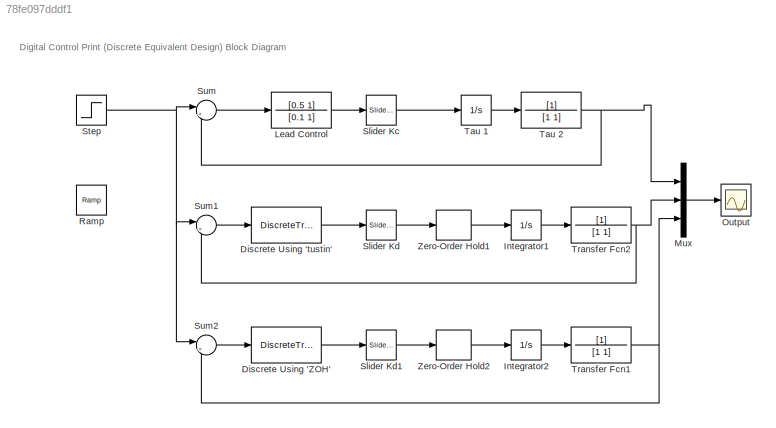
MODEL slx_78fe097dddf1
KIND model
BLOCK [DiscreteTransferFcn] Discrete Using 'ZOH'
  Denominator = [1 -0.7778]
  InputPortMap = u0
  Numerator = [5 -4.779]
  Ports = [1, 1]
  SampleTime = 0.025
BLOCK [DiscreteTransferFcn] Discrete Using 'tustin'
  Denominator = [1 -0.7778]
  InputPortMap = u0
  Numerator = [4.556 -4.333]
  Ports = [1, 1]
  SampleTime = 0.025
BLOCK [Integrator] Integrator1
  Ports = [1, 1]
BLOCK [Integrator] Integrator2
  Ports = [1, 1]
BLOCK [TransferFcn] Lead Control
  Denominator = [0.1 1]
  Numerator = [0.5 1]
BLOCK [Mux] Mux
  DisplayOption = bar
  Inputs = 3
  Ports = [3, 1]
BLOCK [Scope] Output
  DataFormat = StructureWithTime
  Floating = off
  NumInputPorts = 1
  Ports = [1]
  SampleTime = 0
  ShowLegends = off
  TimeRange = 10
  YMax = 1.4
  YMin = 0
BLOCK [Reference] Ramp  REF=simulink/Sources/Ramp
  Ports = [0, 1]
  SourceBlock = simulink/Sources/Ramp
  SourceType = Ramp
  VectorParams1D = on
  X0 = 0
  slope = 1
  start = 0
BLOCK [Reference] Slider Kc  REF=simulink/Math
Operations/Slider
Gain
  Ports = [1, 1]
  SourceBlock = simulink/Math\nOperations/Slider\nGain
  SourceType = Slider Gain
  gain = 10
  high = 10
  low = 0
BLOCK [Reference] Slider Kd  REF=simulink/Math
Operations/Slider
Gain
  Ports = [1, 1]
  SourceBlock = simulink/Math\nOperations/Slider\nGain
  SourceType = Slider Gain
  gain = 10
  high = 10
  low = 0
BLOCK [Reference] Slider Kd1  REF=simulink/Math
Operations/Slider
Gain
  Ports = [1, 1]
  SourceBlock = simulink/Math\nOperations/Slider\nGain
  SourceType = Slider Gain
  gain = 10
  high = 10
  low = 0
BLOCK [Step] Step
  SampleTime = 0
BLOCK [Sum] Sum
  IconShape = round
  InputSameDT = off
  Inputs = |+-
  OutDataTypeStr = Inherit: Inherit via internal rule
  Ports = [2, 1]
  SaturateOnIntegerOverflow = off
BLOCK [Sum] Sum1
  IconShape = round
  InputSameDT = off
  Inputs = |+-
  OutDataTypeStr = Inherit: Inherit via internal rule
  Ports = [2, 1]
  SaturateOnIntegerOverflow = off
BLOCK [Sum] Sum2
  IconShape = round
  InputSameDT = off
  Inputs = |+-
  OutDataTypeStr = Inherit: Inherit via internal rule
  Ports = [2, 1]
  SaturateOnIntegerOverflow = off
BLOCK [Integrator] Tau 1
  Ports = [1, 1]
BLOCK [TransferFcn] Tau 2
  Denominator = [1 1]
BLOCK [TransferFcn] Transfer Fcn1
  Denominator = [1 1]
BLOCK [TransferFcn] Transfer Fcn2
  Denominator = [1 1]
BLOCK [ZeroOrderHold] Zero-Order Hold1
  SampleTime = -1
BLOCK [ZeroOrderHold] Zero-Order Hold2
  SampleTime = -1
ANNOTATION (root): Digital Control Print (Discrete Equivalent Design) Block Diagram
LINE Discrete Using 'ZOH':1 -> Slider Kd1:1
LINE Discrete Using 'tustin':1 -> Slider Kd:1
LINE Integrator1:1 -> Transfer Fcn2:1
LINE Integrator2:1 -> Transfer Fcn1:1
LINE Lead Control:1 -> Slider Kc:1
LINE Mux:1 -> Output:1
LINE Slider Kc:1 -> Tau 1:1
LINE Slider Kd1:1 -> Zero-Order Hold2:1
LINE Slider Kd:1 -> Zero-Order Hold1:1
NET Step:1 -> Sum1:1, Sum2:1, Sum:1
LINE Sum1:1 -> Discrete Using 'tustin':1
LINE Sum2:1 -> Discrete Using 'ZOH':1
LINE Sum:1 -> Lead Control:1
LINE Tau 1:1 -> Tau 2:1
NET Tau 2:1 -> Mux:1, Sum:2
NET Transfer Fcn1:1 -> Mux:3, Sum2:2
NET Transfer Fcn2:1 -> Mux:2, Sum1:2
LINE Zero-Order Hold1:1 -> Integrator1:1
LINE Zero-Order Hold2:1 -> Integrator2:1
note: NET lines group one-source signal fan-out (src -> all destinations, sorted); 1:1 wires keep LINE
